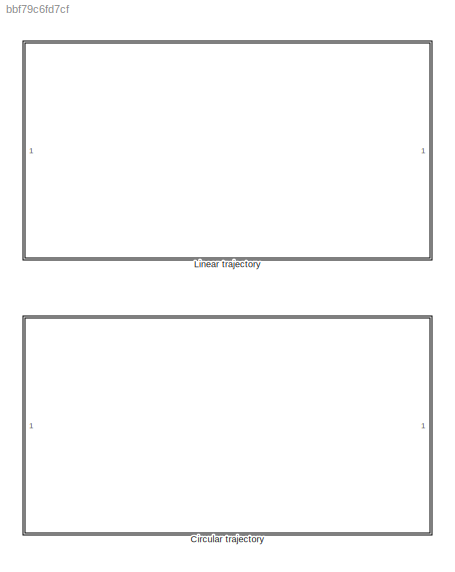
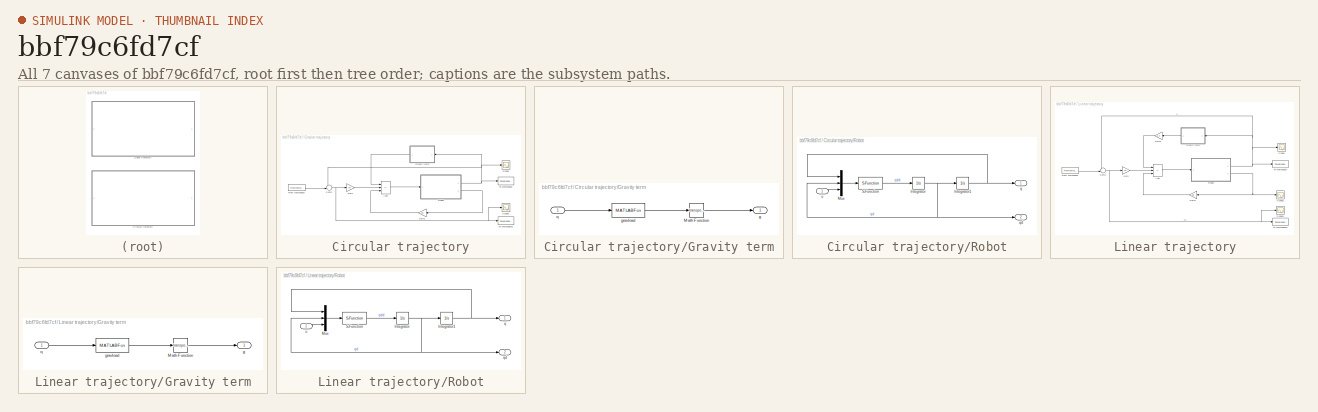
[diagram: thumbnail index - all 7 canvases of the model, root first then tree order]
MODEL slx_bbf79c6fd7cf
KIND model
CONFIG AbsTol = auto
CONFIG EnableMultiTasking = off
CONFIG FixedStep = auto
CONFIG MaxStep = auto
CONFIG MinStep = auto
CONFIG RelTol = 1e-3
CONFIG SampleTimeConstraint = Unconstrained
CONFIG SolverName = VariableStepAuto
CONFIG StartTime = 0.0
CONFIG StopTime = 60
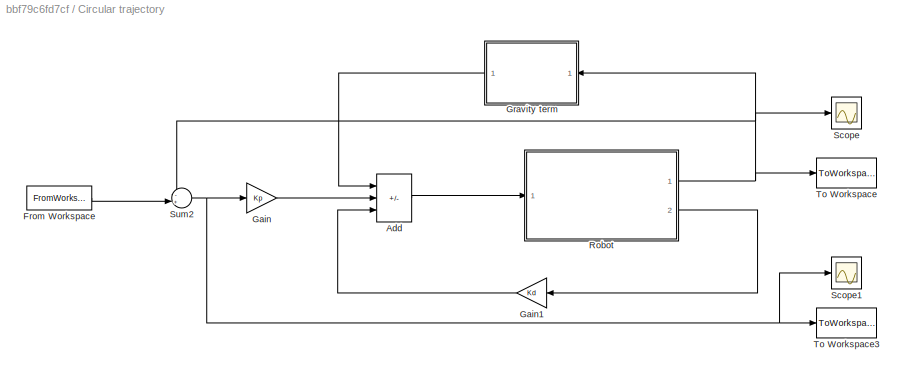
BLOCK [SubSystem] Circular trajectory
  Ports = []
  RequestExecContextInheritance = off
BLOCK [Sum] Circular trajectory/Add
  IconShape = rectangular
  Inputs = ++-
  Ports = [3, 1]
BLOCK [FromWorkspace] Circular trajectory/From Workspace
  OutputAfterFinalValue = Holding final value
  VariableName = qqsr
BLOCK [Gain] Circular trajectory/Gain
  Gain = Kp
  Multiplication = Matrix(K*u)
BLOCK [Gain] Circular trajectory/Gain1
  Gain = Kd
  Multiplication = Matrix(K*u)
  NameLocation = top
BLOCK [SubSystem] Circular trajectory/Gravity term
  NameLocation = top
  Ports = [1, 1]
  RequestExecContextInheritance = off
BLOCK [Math] Circular trajectory/Gravity term/Math Function
  Operator = transpose
  Ports = [1, 1]
  SignedPower = on
BLOCK [Outport] Circular trajectory/Gravity term/g
  VectorParamsAs1DForOutWhenUnconnected = off
BLOCK [MATLABFcn] Circular trajectory/Gravity term/gravload
  MATLABFcn = gravload(robot,u')
  Output1D = off
  OutputDimensions = [1 robot.n]
  Ports = [1, 1]
BLOCK [Inport] Circular trajectory/Gravity term/q
BLOCK [SubSystem] Circular trajectory/Robot
  Ports = [1, 2]
  RequestExecContextInheritance = off
BLOCK [Integrator] Circular trajectory/Robot/Integrator
  Ports = [1, 1]
BLOCK [Integrator] Circular trajectory/Robot/Integrator1
  InitialCondition = q0
  Ports = [1, 1]
BLOCK [Mux] Circular trajectory/Robot/Mux
  DisplayOption = bar
  Inputs = 3
  Ports = [3, 1]
BLOCK [S-Function] Circular trajectory/Robot/S-Function
  EnableBusSupport = off
  FunctionName = slaccel
  Parameters = p560_nofric
  Ports = [1, 1]
  SFcnIsStateOwnerBlock = off
  SFunctionDeploymentMode = off
BLOCK [Outport] Circular trajectory/Robot/q
  VectorParamsAs1DForOutWhenUnconnected = off
BLOCK [Outport] Circular trajectory/Robot/qd
  Port = 2
  VectorParamsAs1DForOutWhenUnconnected = off
BLOCK [Inport] Circular trajectory/Robot/u
BLOCK [Scope] Circular trajectory/Scope
  Floating = off
  NumInputPorts = 1
  Ports = [1]
  ScopeSpecificationString = Simulink.scopes.TimeScopeBlockCfg('CurrentConfiguration', extmgr.ConfigurationSet(extmgr.Configuration('Core','General UI',true),extmgr.Configuration('Core','Source UI',true),extmgr.Configuration('Sources','WiredSimulink',true,'DataLoggingVariableName','ScopeData2'),extmgr.Configuration('Visuals','Time Domain',true),extmgr.Configuration('Tools','Plot Navigation',true),extmgr.Configuration('Tools',...<+40ch>
BLOCK [Scope] Circular trajectory/Scope1
  Floating = off
  NumInputPorts = 1
  Ports = [1]
  ScopeSpecificationString = Simulink.scopes.TimeScopeBlockCfg('CurrentConfiguration', extmgr.ConfigurationSet(extmgr.Configuration('Core','General UI',true),extmgr.Configuration('Core','Source UI',true),extmgr.Configuration('Sources','WiredSimulink',true,'DataLoggingVariableName','ScopeData3'),extmgr.Configuration('Visuals','Time Domain',true,'SerializedDisplays',{struct('MinYLimReal','-0.63745','MaxYLimReal','0.70106','YLab...<+1410ch>
BLOCK [Sum] Circular trajectory/Sum2
  Inputs = -+|
  Ports = [2, 1]
BLOCK [ToWorkspace] Circular trajectory/To Workspace
  FixptAsFi = on
  MaxDataPoints = inf
  Ports = [1]
  SampleTime = -1
  SaveFormat = Timeseries
  VariableName = qqr_slx
BLOCK [ToWorkspace] Circular trajectory/To Workspace3
  FixptAsFi = on
  MaxDataPoints = inf
  Ports = [1]
  SampleTime = -1
  SaveFormat = Timeseries
  VariableName = eqr
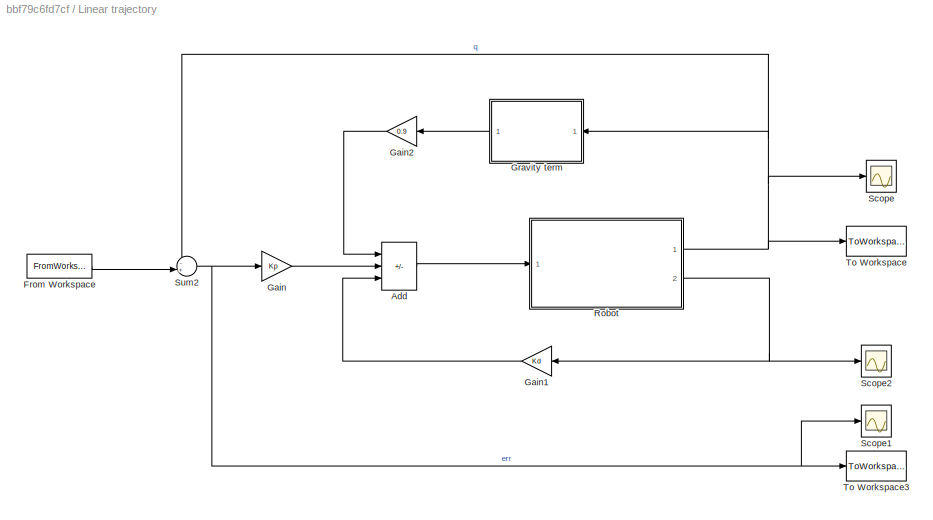
BLOCK [SubSystem] Linear trajectory
  Ports = []
  RequestExecContextInheritance = off
BLOCK [Sum] Linear trajectory/Add
  IconShape = rectangular
  Inputs = ++-
  Ports = [3, 1]
BLOCK [FromWorkspace] Linear trajectory/From Workspace
  OutputAfterFinalValue = Holding final value
  VariableName = qqsl
BLOCK [Gain] Linear trajectory/Gain
  Gain = Kp
  Multiplication = Matrix(K*u)
BLOCK [Gain] Linear trajectory/Gain1
  Gain = Kd
  Multiplication = Matrix(K*u)
  NameLocation = top
BLOCK [Gain] Linear trajectory/Gain2
  Gain = 0.9
  Multiplication = Matrix(K*u)
BLOCK [SubSystem] Linear trajectory/Gravity term
  NameLocation = top
  Ports = [1, 1]
  RequestExecContextInheritance = off
BLOCK [Math] Linear trajectory/Gravity term/Math Function
  Operator = transpose
  Ports = [1, 1]
  SignedPower = on
BLOCK [Outport] Linear trajectory/Gravity term/g
  VectorParamsAs1DForOutWhenUnconnected = off
BLOCK [MATLABFcn] Linear trajectory/Gravity term/gravload
  MATLABFcn = gravload(robot,u')
  Output1D = off
  OutputDimensions = [1 robot.n]
  Ports = [1, 1]
BLOCK [Inport] Linear trajectory/Gravity term/q
BLOCK [SubSystem] Linear trajectory/Robot
  Ports = [1, 2]
  RequestExecContextInheritance = off
BLOCK [Integrator] Linear trajectory/Robot/Integrator
  Ports = [1, 1]
BLOCK [Integrator] Linear trajectory/Robot/Integrator1
  InitialCondition = q0
  Ports = [1, 1]
BLOCK [Mux] Linear trajectory/Robot/Mux
  DisplayOption = bar
  Inputs = 3
  Ports = [3, 1]
BLOCK [S-Function] Linear trajectory/Robot/S-Function
  EnableBusSupport = off
  FunctionName = slaccel
  Parameters = p560_nofric
  Ports = [1, 1]
  SFcnIsStateOwnerBlock = off
  SFunctionDeploymentMode = off
BLOCK [Outport] Linear trajectory/Robot/q
  VectorParamsAs1DForOutWhenUnconnected = off
BLOCK [Outport] Linear trajectory/Robot/qd
  Port = 2
  VectorParamsAs1DForOutWhenUnconnected = off
BLOCK [Inport] Linear trajectory/Robot/u
BLOCK [Scope] Linear trajectory/Scope
  Floating = off
  NumInputPorts = 1
  Ports = [1]
  ScopeSpecificationString = Simulink.scopes.TimeScopeBlockCfg('CurrentConfiguration', extmgr.ConfigurationSet(extmgr.Configuration('Core','General UI',true),extmgr.Configuration('Core','Source UI',true),extmgr.Configuration('Sources','WiredSimulink',true),extmgr.Configuration('Visuals','Time Domain',true,'SerializedDisplays',{struct('MinYLimReal','-1.11082','MaxYLimReal','4.35703','YLabelReal','','MinYLimMag','0.00000','MaxY...<+1353ch>
BLOCK [Scope] Linear trajectory/Scope1
  Floating = off
  NumInputPorts = 1
  Ports = [1]
  ScopeSpecificationString = Simulink.scopes.TimeScopeBlockCfg('CurrentConfiguration', extmgr.ConfigurationSet(extmgr.Configuration('Core','General UI',true),extmgr.Configuration('Core','Source UI',true),extmgr.Configuration('Sources','WiredSimulink',true,'DataLoggingVariableName','ScopeData1'),extmgr.Configuration('Visuals','Time Domain',true,'SerializedDisplays',{struct('MinYLimReal','-0.14542','MaxYLimReal','0.16737','YLab...<+1433ch>
BLOCK [Scope] Linear trajectory/Scope2
  Floating = off
  NumInputPorts = 1
  Ports = [1]
  ScopeSpecificationString = Simulink.scopes.TimeScopeBlockCfg('CurrentConfiguration', extmgr.ConfigurationSet(extmgr.Configuration('Core','General UI',true),extmgr.Configuration('Core','Source UI',true),extmgr.Configuration('Sources','WiredSimulink',true,'DataLoggingVariableName','ScopeData1'),extmgr.Configuration('Visuals','Time Domain',true,'SerializedDisplays',{struct('MinYLimReal','-0.21999','MaxYLimReal','0.28617','YLab...<+1433ch>
BLOCK [Sum] Linear trajectory/Sum2
  Inputs = -+|
  Ports = [2, 1]
BLOCK [ToWorkspace] Linear trajectory/To Workspace
  FixptAsFi = on
  MaxDataPoints = inf
  Ports = [1]
  SampleTime = -1
  SaveFormat = Timeseries
  VariableName = qql_slx
BLOCK [ToWorkspace] Linear trajectory/To Workspace3
  FixptAsFi = on
  MaxDataPoints = inf
  Ports = [1]
  SampleTime = -1
  SaveFormat = Timeseries
  VariableName = eql
LINE Circular trajectory/Add:1 -> Circular trajectory/Robot:1
LINE Circular trajectory/From Workspace:1 -> Circular trajectory/Sum2:2
LINE Circular trajectory/Gain1:1 -> Circular trajectory/Add:3
LINE Circular trajectory/Gain:1 -> Circular trajectory/Add:2
LINE Circular trajectory/Gravity term/Math Function:1 -> Circular trajectory/Gravity term/g:1
LINE Circular trajectory/Gravity term/gravload:1 -> Circular trajectory/Gravity term/Math Function:1
LINE Circular trajectory/Gravity term/q:1 -> Circular trajectory/Gravity term/gravload:1
LINE Circular trajectory/Gravity term:1 -> Circular trajectory/Add:1
NET Circular trajectory/Robot/Integrator1:1 -> Circular trajectory/Robot/Mux:1, Circular trajectory/Robot/q:1
NET Circular trajectory/Robot/Integrator:1 -> Circular trajectory/Robot/Integrator1:1, Circular trajectory/Robot/Mux:2, Circular trajectory/Robot/qd:1
LINE Circular trajectory/Robot/Mux:1 -> Circular trajectory/Robot/S-Function:1
LINE Circular trajectory/Robot/S-Function:1 -> Circular trajectory/Robot/Integrator:1
LINE Circular trajectory/Robot/u:1 -> Circular trajectory/Robot/Mux:3
NET Circular trajectory/Robot:1 -> Circular trajectory/Gravity term:1, Circular trajectory/Scope:1, Circular trajectory/Sum2:1, Circular trajectory/To Workspace:1
LINE Circular trajectory/Robot:2 -> Circular trajectory/Gain1:1
NET Circular trajectory/Sum2:1 -> Circular trajectory/Gain:1, Circular trajectory/Scope1:1, Circular trajectory/To Workspace3:1
LINE Linear trajectory/Add:1 -> Linear trajectory/Robot:1
LINE Linear trajectory/From Workspace:1 -> Linear trajectory/Sum2:2
LINE Linear trajectory/Gain1:1 -> Linear trajectory/Add:3
LINE Linear trajectory/Gain2:1 -> Linear trajectory/Add:1
LINE Linear trajectory/Gain:1 -> Linear trajectory/Add:2
LINE Linear trajectory/Gravity term/Math Function:1 -> Linear trajectory/Gravity term/g:1
LINE Linear trajectory/Gravity term/gravload:1 -> Linear trajectory/Gravity term/Math Function:1
LINE Linear trajectory/Gravity term/q:1 -> Linear trajectory/Gravity term/gravload:1
LINE Linear trajectory/Gravity term:1 -> Linear trajectory/Gain2:1
NET Linear trajectory/Robot/Integrator1:1 -> Linear trajectory/Robot/Mux:1, Linear trajectory/Robot/q:1
NET Linear trajectory/Robot/Integrator:1 -> Linear trajectory/Robot/Integrator1:1, Linear trajectory/Robot/Mux:2, Linear trajectory/Robot/qd:1
LINE Linear trajectory/Robot/Mux:1 -> Linear trajectory/Robot/S-Function:1
LINE Linear trajectory/Robot/S-Function:1 -> Linear trajectory/Robot/Integrator:1
LINE Linear trajectory/Robot/u:1 -> Linear trajectory/Robot/Mux:3
NET Linear trajectory/Robot:1 -> Linear trajectory/Gravity term:1, Linear trajectory/Scope:1, Linear trajectory/Sum2:1, Linear trajectory/To Workspace:1
NET Linear trajectory/Robot:2 -> Linear trajectory/Gain1:1, Linear trajectory/Scope2:1
NET Linear trajectory/Sum2:1 -> Linear trajectory/Gain:1, Linear trajectory/Scope1:1, Linear trajectory/To Workspace3:1
note: NET lines group one-source signal fan-out (src -> all destinations, sorted); 1:1 wires keep LINE
